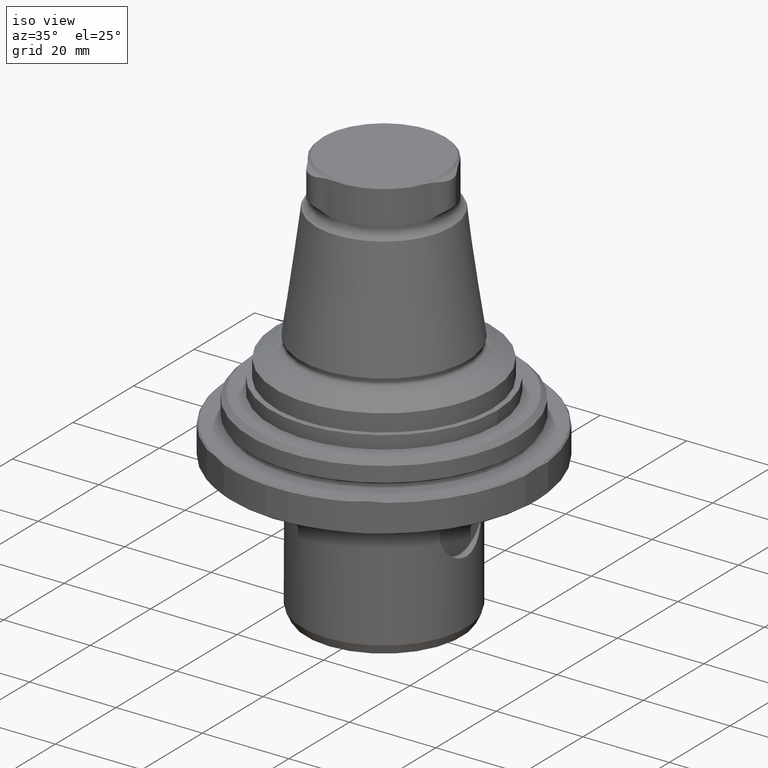
[diagram: clean part render]
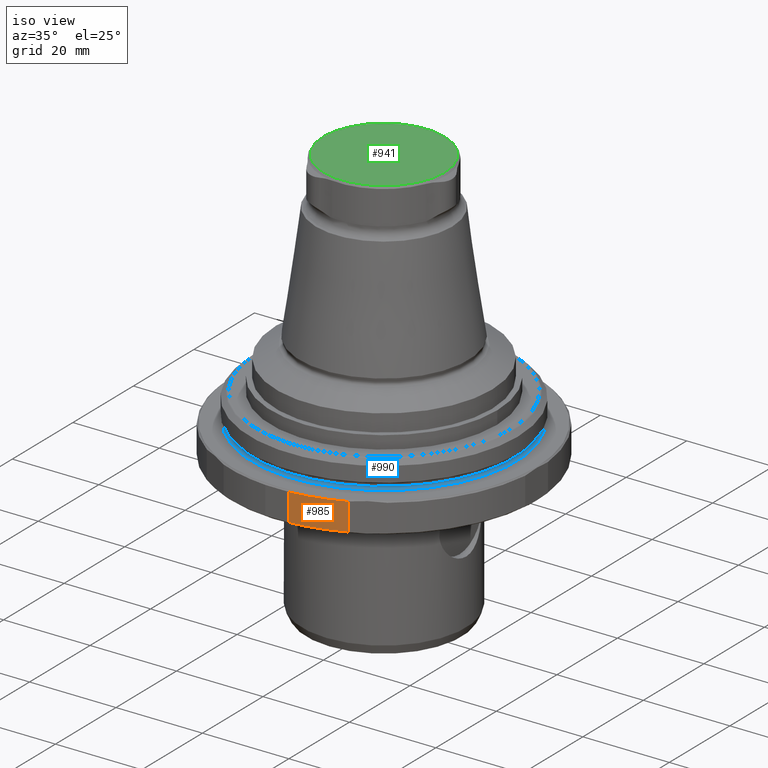
[diagram: same view with three faces highlighted in distinct colors, each labeled with its STEP entity id]
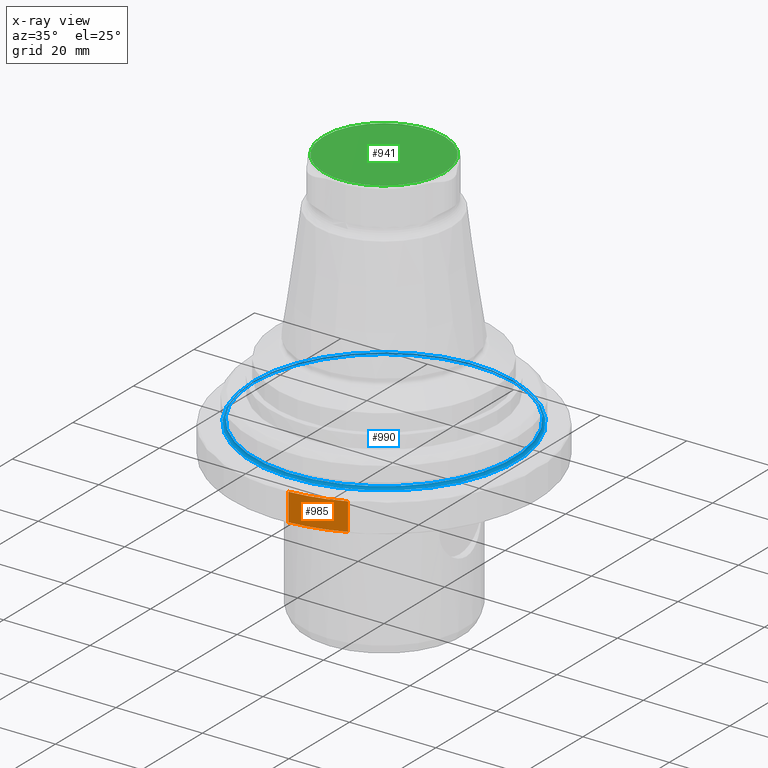
[diagram: x-ray of the same camera — body ghosted, the three highlighted faces saturated]
A machine part, iso view with three faces highlighted in distinct colors.
The next image is the same camera in x-ray (body ghosted, the three faces saturated) — at least one of them is partly hidden behind the body in this view.
Their STEP definitions:

[orange] entity #985 — the highlighted cylindrical surface (partial cylindrical patch) has radius 35.5 mm, axis along (-0, -0, -1).
#86=LINE('',#1851,#116);
#87=LINE('',#1852,#117);
#116=VECTOR('',#1365,1000.);
#117=VECTOR('',#1366,1000.);
#148=CIRCLE('',#1085,35.5);
#161=CIRCLE('',#1100,35.5);
#436=ORIENTED_EDGE('',*,*,#603,.F.);
#437=ORIENTED_EDGE('',*,*,#592,.F.);
#438=ORIENTED_EDGE('',*,*,#604,.T.);
#439=ORIENTED_EDGE('',*,*,#562,.T.);
#562=EDGE_CURVE('',#678,#676,#148,.T.);
#592=EDGE_CURVE('',#703,#692,#161,.T.);
#603=EDGE_CURVE('',#692,#676,#86,.F.);
#604=EDGE_CURVE('',#703,#678,#87,.F.);
#676=VERTEX_POINT('',#1723);
#678=VERTEX_POINT('',#1726);
#692=VERTEX_POINT('',#1783);
#703=VERTEX_POINT('',#1827);
#781=EDGE_LOOP('',(#436,#437,#438,#439));
#877=FACE_BOUND('',#781,.T.);
#929=CYLINDRICAL_SURFACE('',#1112,35.5);
#985=ADVANCED_FACE('',(#877),#929,.T.);
#1085=AXIS2_PLACEMENT_3D('',#1725,#1297,#1298);
#1100=AXIS2_PLACEMENT_3D('',#1828,#1329,#1330);
#1112=AXIS2_PLACEMENT_3D('',#1850,#1363,#1364);
#1297=DIRECTION('',(-5.47430718319515E-16,-9.52839907700963E-18,-1.));
#1298=DIRECTION('',(-1.,8.32667268468868E-16,5.47430716006892E-16));
#1329=DIRECTION('',(-5.47430718319515E-16,-9.52839907700963E-18,-1.));
#1330=DIRECTION('',(-1.,8.32667268468868E-16,5.47430716006892E-16));
#1363=DIRECTION('',(-5.47430718319515E-16,-9.52839907700963E-18,-1.));
#1364=DIRECTION('',(-1.,8.32667268468868E-16,5.47430716006892E-16));
#1365=DIRECTION('',(-5.47430718319515E-16,-9.52839907700963E-18,-1.));
#1366=DIRECTION('',(-5.47430718319515E-16,-9.52839907700962E-18,-1.));
#1723=CARTESIAN_POINT('',(2.66270539113885,-35.4000000000001,-1.29999999999999));
#1725=CARTESIAN_POINT('',(-8.83659486482274E-14,-9.81673936949996E-14,-1.29999999999999));
#1726=CARTESIAN_POINT('',(14.3911658526399,-32.4521855258135,-1.3));
#1783=CARTESIAN_POINT('',(2.66270539113884,-35.4000000000001,-7.7));
#1827=CARTESIAN_POINT('',(14.3911658526399,-32.4521855258135,-7.7));
#1828=CARTESIAN_POINT('',(-9.18695052454722E-14,-9.82283754490925E-14,-7.69999999999999));
#1850=CARTESIAN_POINT('',(-8.82017194327315E-14,-9.81645351752765E-14,-0.999999999999989));
#1851=CARTESIAN_POINT('',(2.66270539113885,-35.4000000000001,-0.99999999999999));
#1852=CARTESIAN_POINT('',(14.3911658526399,-32.4521855258135,-0.999999999999997));

[blue] entity #990 — the highlighted toroidal blend (fillet) surface has major radius 30.65 mm and minor (blend) radius 0.6 mm.
#22=TOROIDAL_SURFACE('',#1119,30.65,0.6);
#162=CIRCLE('',#1116,30.65);
#164=CIRCLE('',#1120,30.05);
#452=ORIENTED_EDGE('',*,*,#605,.F.);
#453=ORIENTED_EDGE('',*,*,#607,.T.);
#605=EDGE_CURVE('',#704,#704,#162,.T.);
#607=EDGE_CURVE('',#706,#706,#164,.T.);
#704=VERTEX_POINT('',#1857);
#706=VERTEX_POINT('',#1863);
#788=EDGE_LOOP('',(#452));
#789=EDGE_LOOP('',(#453));
#884=FACE_BOUND('',#788,.T.);
#885=FACE_BOUND('',#789,.T.);
#990=ADVANCED_FACE('',(#884,#885),#22,.F.);
#1116=AXIS2_PLACEMENT_3D('',#1856,#1373,#1374);
#1119=AXIS2_PLACEMENT_3D('',#1861,#1379,#1380);
#1120=AXIS2_PLACEMENT_3D('',#1862,#1381,#1382);
#1373=DIRECTION('',(-5.47430718319515E-16,-9.52839907700963E-18,-1.));
#1374=DIRECTION('',(-1.,8.32667268468868E-16,5.47430716006892E-16));
#1379=DIRECTION('',(-5.47430718319515E-16,-9.52839907700963E-18,-1.));
#1380=DIRECTION('',(-1.,8.32667268468868E-16,5.47430716006892E-16));
#1381=DIRECTION('',(-5.47430718319515E-16,-9.52839907700963E-18,-1.));
#1382=DIRECTION('',(-1.,8.32667268468868E-16,5.47430716006892E-16));
#1856=CARTESIAN_POINT('',(-8.82017194327315E-14,-9.81645351752765E-14,-0.999999999999989));
#1857=CARTESIAN_POINT('',(-30.6500000000001,-7.26432833967057E-14,-0.999999999999972));
#1861=CARTESIAN_POINT('',(-8.78732610017398E-14,-9.81588181358303E-14,-0.399999999999989));
#1862=CARTESIAN_POINT('',(-8.78732610017398E-14,-9.81588181358303E-14,-0.399999999999989));
#1863=CARTESIAN_POINT('',(-30.0500000000001,-7.31371667183408E-14,-0.399999999999973));

[green] entity #941 — the highlighted planar face has unit normal (0, 0, 1).
#43=PLANE('',#1029);
#123=CIRCLE('',#1030,14.);
#235=ORIENTED_EDGE('',*,*,#498,.F.);
#498=EDGE_CURVE('',#631,#631,#123,.T.);
#631=VERTEX_POINT('',#1495);
#725=EDGE_LOOP('',(#235));
#821=FACE_BOUND('',#725,.T.);
#941=ADVANCED_FACE('',(#821),#43,.T.);
#1029=AXIS2_PLACEMENT_3D('',#1493,#1171,#1172);
#1030=AXIS2_PLACEMENT_3D('',#1494,#1173,#1174);
#1171=DIRECTION('',(4.38328612912168E-16,8.51929322185263E-24,1.));
#1172=DIRECTION('',(1.,-9.77164313006873E-16,-4.38328610599545E-16));
#1173=DIRECTION('',(-4.38328612912168E-16,-8.51929322185263E-24,-1.));
#1174=DIRECTION('',(-1.,9.77164313006873E-16,4.38328610599545E-16));
#1493=CARTESIAN_POINT('',(-14.0000000000001,-8.44842343176727E-14,55.));
#1494=CARTESIAN_POINT('',(-6.36553171097064E-14,-9.81645346997689E-14,55.));
#1495=CARTESIAN_POINT('',(-14.0000000000001,-8.44842343176727E-14,55.));